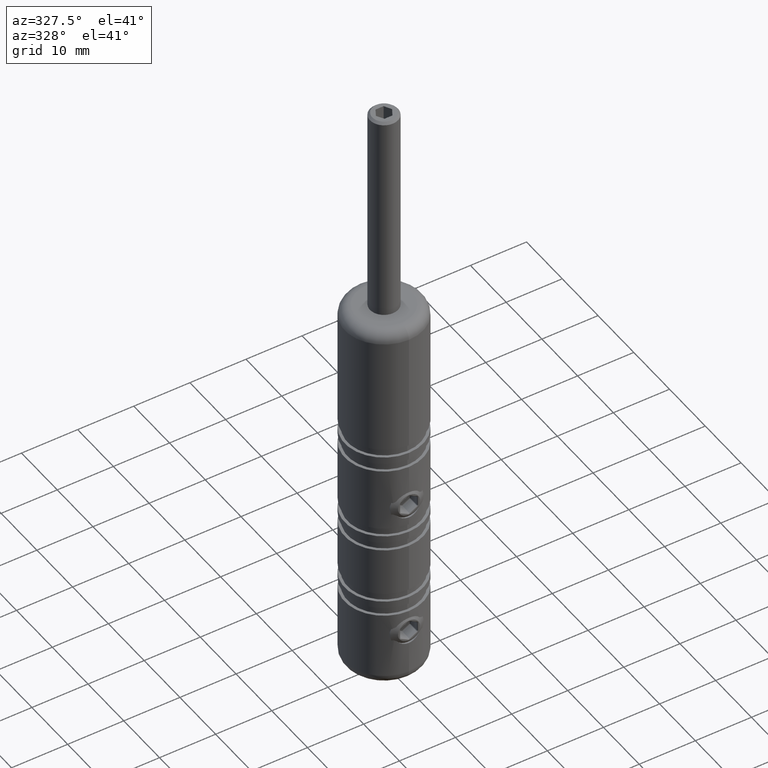
[diagram: clean part render]
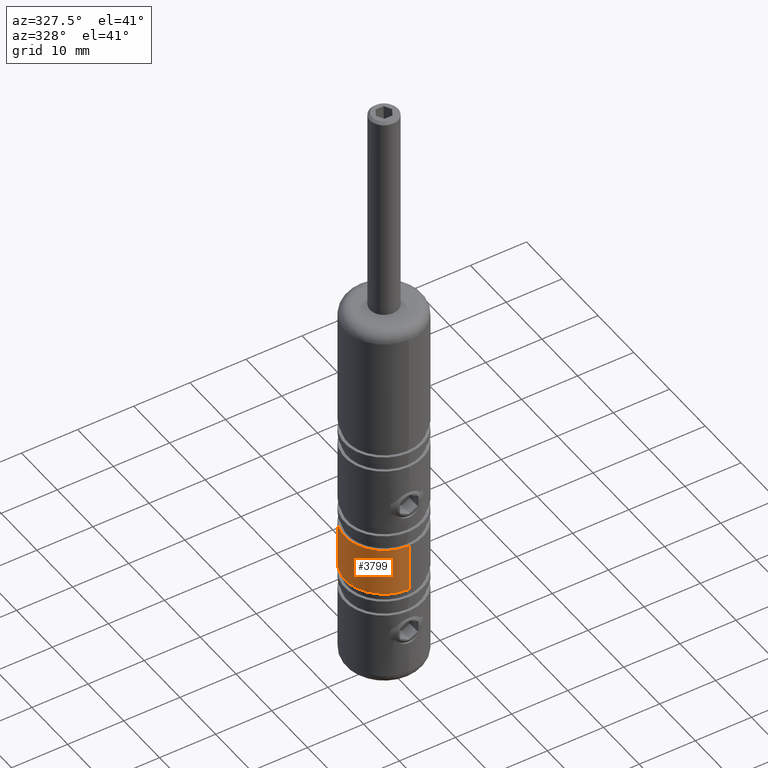
[diagram: same view with one face highlighted and labeled with its STEP entity id]
A machine part, auxiliary view. The second image highlights one B-rep face of the part: STEP entity #3799.
In plain terms, the highlighted cylindrical surface (partial cylindrical patch) has radius 7 mm, axis along (0, 0, 1).
Its self-contained STEP definition (entity closure, byte-faithful):
#489 = AXIS2_PLACEMENT_3D ( 'NONE', #8557, #12616, #6138 ) ;
#608 = CARTESIAN_POINT ( 'NONE',  ( 8.572527594031454500E-016, 6.999999999999982200, -16.70000000000000600 ) ) ;
#867 = CARTESIAN_POINT ( 'NONE',  ( -2.244461535863837100, 6.630754201568820800, -13.46336488651462200 ) ) ;
#972 = CARTESIAN_POINT ( 'NONE',  ( -2.167036636351883100, 6.656792451069414100, -13.60707604040152700 ) ) ;
#1109 = CARTESIAN_POINT ( 'NONE',  ( 0.0000000000000000000, -3.095322350909004000E-015, -16.70000000000000600 ) ) ;
#1395 = CARTESIAN_POINT ( 'NONE',  ( 0.0000000000000000000, -6.999999999999988500, -16.70000000000000600 ) ) ;
#1485 = ORIENTED_EDGE ( 'NONE', *, *, #4259, .F. ) ;
#1721 = CARTESIAN_POINT ( 'NONE',  ( 8.572527594031454500E-016, 6.999999999999982200, -8.000000000000007100 ) ) ;
#2055 = CARTESIAN_POINT ( 'NONE',  ( -2.182616585610912500, 6.652348402511701200, -11.08827061270666000 ) ) ;
#2171 = CARTESIAN_POINT ( 'NONE',  ( -1.527369289322312500, 6.832725277042822400, -14.33584607393498800 ) ) ;
#2224 = CARTESIAN_POINT ( 'NONE',  ( -1.997143572992787100, 6.713209561779717800, -10.81184098112805500 ) ) ;
#2493 = VECTOR ( 'NONE', #14704, 1000.000000000000000 ) ;
#3015 = DIRECTION ( 'NONE',  ( -0.0000000000000000000, 5.987083850887820200E-017, 1.000000000000000000 ) ) ;
#3104 = VECTOR ( 'NONE', #15484, 1000.000000000000000 ) ;
#3134 = LINE ( 'NONE', #4583, #10028 ) ;
#3303 = CARTESIAN_POINT ( 'NONE',  ( 8.570729401906099000E-016, 6.999999999999983100, -14.85000000000000700 ) ) ;
#3377 = CARTESIAN_POINT ( 'NONE',  ( -1.257255898599277900, 6.887546679547238400, -14.51696773874584800 ) ) ;
#3426 = CARTESIAN_POINT ( 'NONE',  ( -0.3302835225427124800, 6.994060066667625400, -9.866497415497489600 ) ) ;
#3486 = CARTESIAN_POINT ( 'NONE',  ( 8.570729401906099000E-016, 6.999999999999983100, -14.85000000000000700 ) ) ;
#3633 = EDGE_CURVE ( 'NONE', #6071, #15276, #11861, .T. ) ;
#3772 = AXIS2_PLACEMENT_3D ( 'NONE', #1109, #6525, #16828 ) ;
#3799 = ADVANCED_FACE ( 'NONE', ( #15934 ), #16361, .T. ) ;
#4184 = ORIENTED_EDGE ( 'NONE', *, *, #15216, .F. ) ;
#4259 = EDGE_CURVE ( 'NONE', #15190, #7906, #8353, .T. ) ;
#4426 = ORIENTED_EDGE ( 'NONE', *, *, #13851, .F. ) ;
#4583 = CARTESIAN_POINT ( 'NONE',  ( 8.572527594031454500E-016, 6.999999999999985800, 35.00000000000000000 ) ) ;
#4686 = CARTESIAN_POINT ( 'NONE',  ( -0.1641597229444198300, 6.999999999999983100, -14.85000000000000500 ) ) ;
#4741 = CARTESIAN_POINT ( 'NONE',  ( -2.483724230319996000, 6.544639652285172600, -12.02090666840677200 ) ) ;
#4796 = CARTESIAN_POINT ( 'NONE',  ( 0.0000000000000000000, 6.999999999999984000, -9.850000000000010300 ) ) ;
#4855 = CARTESIAN_POINT ( 'NONE',  ( -0.6517530939081319600, 6.971454749619989700, -9.930890619034549600 ) ) ;
#4872 = ORIENTED_EDGE ( 'NONE', *, *, #12644, .T. ) ;
#4912 = CARTESIAN_POINT ( 'NONE',  ( -1.113545017333396100, 6.912546105698071500, -10.10571238519315300 ) ) ;
#5744 = CARTESIAN_POINT ( 'NONE',  ( 0.0000000000000000000, 6.999999999999984000, -9.850000000000010300 ) ) ;
#6071 = VERTEX_POINT ( 'NONE', #1395 ) ;
#6086 = CARTESIAN_POINT ( 'NONE',  ( -2.499912498922765900, 6.538381872178709900, -12.18405522716552600 ) ) ;
#6097 = ORIENTED_EDGE ( 'NONE', *, *, #3633, .T. ) ;
#6138 = DIRECTION ( 'NONE',  ( 0.0000000000000000000, -1.000000000000000000, 0.0000000000000000000 ) ) ;
#6496 = CARTESIAN_POINT ( 'NONE',  ( 8.572527594031454500E-016, 6.999999999999985800, 35.00000000000000000 ) ) ;
#6525 = DIRECTION ( 'NONE',  ( -0.0000000000000000000, 5.987083850887820200E-017, 1.000000000000000000 ) ) ;
#7320 = CARTESIAN_POINT ( 'NONE',  ( -2.371248968516983500, 6.586477601639737500, -13.15892971623195100 ) ) ;
#7388 = CARTESIAN_POINT ( 'NONE',  ( -1.111092826571011400, 6.912925548549028900, -14.59544560298867000 ) ) ;
#7674 = EDGE_CURVE ( 'NONE', #15190, #6071, #16305, .T. ) ;
#7884 = AXIS2_PLACEMENT_3D ( 'NONE', #10912, #3015, #13639 ) ;
#7906 = VERTEX_POINT ( 'NONE', #3303 ) ;
#7932 = EDGE_LOOP ( 'NONE', ( #1485, #14178, #6097, #4426, #4184, #4872 ) ) ;
#8353 = LINE ( 'NONE', #6496, #3104 ) ;
#8519 = CARTESIAN_POINT ( 'NONE',  ( -1.652205860208954200, 6.803257230850212200, -14.23323798043909100 ) ) ;
#8557 = CARTESIAN_POINT ( 'NONE',  ( 0.0000000000000000000, -3.851859888774471700E-031, 35.00000000000000000 ) ) ;
#8629 = CARTESIAN_POINT ( 'NONE',  ( -0.1666654329739607800, 6.999999999999982200, -9.850000000000012100 ) ) ;
#8679 = CARTESIAN_POINT ( 'NONE',  ( -0.6540777655606419000, 6.971270671019898800, -14.76858295613455000 ) ) ;
#9959 = CARTESIAN_POINT ( 'NONE',  ( -1.881945351263201800, 6.743320758237990400, -14.00367807941447400 ) ) ;
#10015 = CARTESIAN_POINT ( 'NONE',  ( -1.654417258820098700, 6.802708637123689800, -10.46876837195973300 ) ) ;
#10028 = VECTOR ( 'NONE', #15065, 1000.000000000000000 ) ;
#10083 = B_SPLINE_CURVE_WITH_KNOTS ( 'NONE', 3,
 ( #4796, #8629, #3426, #4855, #12685, #4912, #13896, #11284, #10015, #2224, #2055, #15164, #11394, #4741, #6086, #14012, #11171, #15219, #7320, #867, #972, #11229, #9959, #8519, #2171, #3377, #7388, #16539, #8679, #12467, #4686, #3486 ),
 .UNSPECIFIED., .F., .F.,
 ( 4, 2, 2, 2, 2, 2, 2, 2, 2, 2, 2, 2, 2, 2, 2, 4 ),
 ( 0.0000000000000000000, 0.0004926113832447606900, 0.0009852227664895213800, 0.001477834149734281500, 0.001970445532979041900, 0.002955668299468562200, 0.003448279682713320600, 0.003940891065958078600, 0.004433502449202837000, 0.004926113832447595400, 0.005418725215692353000, 0.005911336598937110500, 0.006403947982181868900, 0.006896559365426626500, 0.007389170748671385800, 0.007881782131916145000 ),
 .UNSPECIFIED. ) ;
#10876 = CIRCLE ( 'NONE', #7884, 6.999999999999984900 ) ;
#10912 = CARTESIAN_POINT ( 'NONE',  ( 0.0000000000000000000, -2.574446055881763600E-015, -8.000000000000007100 ) ) ;
#11005 = CARTESIAN_POINT ( 'NONE',  ( 0.0000000000000000000, -6.999999999999987600, -8.000000000000007100 ) ) ;
#11171 = CARTESIAN_POINT ( 'NONE',  ( -2.483487897825189500, 6.544728749842665400, -12.68049854212959500 ) ) ;
#11229 = CARTESIAN_POINT ( 'NONE',  ( -1.986513075921679600, 6.712875637094601400, -13.87645135979993500 ) ) ;
#11284 = CARTESIAN_POINT ( 'NONE',  ( -1.527415625474456900, 6.832721556297995500, -10.36415885614813200 ) ) ;
#11394 = CARTESIAN_POINT ( 'NONE',  ( -2.418985510736148200, 6.568843378357455800, -11.69754496551382400 ) ) ;
#11861 = LINE ( 'NONE', #12314, #2493 ) ;
#12220 = VERTEX_POINT ( 'NONE', #5744 ) ;
#12314 = CARTESIAN_POINT ( 'NONE',  ( 0.0000000000000000000, -6.999999999999985800, 35.00000000000000000 ) ) ;
#12467 = CARTESIAN_POINT ( 'NONE',  ( -0.3297201420311619600, 6.994120181978717100, -14.83367587801715700 ) ) ;
#12616 = DIRECTION ( 'NONE',  ( -0.0000000000000000000, 5.987083850887820200E-017, 1.000000000000000000 ) ) ;
#12644 = EDGE_CURVE ( 'NONE', #12220, #7906, #10083, .T. ) ;
#12685 = CARTESIAN_POINT ( 'NONE',  ( -0.8113121982069010400, 6.954498449641811000, -9.979645190980026100 ) ) ;
#13639 = DIRECTION ( 'NONE',  ( 0.0000000000000000000, -1.000000000000000000, 0.0000000000000000000 ) ) ;
#13851 = EDGE_CURVE ( 'NONE', #14793, #15276, #10876, .T. ) ;
#13896 = CARTESIAN_POINT ( 'NONE',  ( -1.256655774511397800, 6.887662783791753900, -10.18265604807506900 ) ) ;
#14012 = CARTESIAN_POINT ( 'NONE',  ( -2.500086800412540700, 6.538315226349094000, -12.51329776576652500 ) ) ;
#14178 = ORIENTED_EDGE ( 'NONE', *, *, #7674, .T. ) ;
#14704 = DIRECTION ( 'NONE',  ( -0.0000000000000000000, 5.987083850887820200E-017, 1.000000000000000000 ) ) ;
#14793 = VERTEX_POINT ( 'NONE', #1721 ) ;
#15065 = DIRECTION ( 'NONE',  ( -0.0000000000000000000, 5.987083850887820200E-017, 1.000000000000000000 ) ) ;
#15164 = CARTESIAN_POINT ( 'NONE',  ( -2.370245848837739400, 6.586829527406432100, -11.53859463416655000 ) ) ;
#15190 = VERTEX_POINT ( 'NONE', #608 ) ;
#15216 = EDGE_CURVE ( 'NONE', #12220, #14793, #3134, .T. ) ;
#15219 = CARTESIAN_POINT ( 'NONE',  ( -2.418957270324506600, 6.568853193062357900, -13.00237040807978900 ) ) ;
#15276 = VERTEX_POINT ( 'NONE', #11005 ) ;
#15484 = DIRECTION ( 'NONE',  ( -0.0000000000000000000, 5.987083850887820200E-017, 1.000000000000000000 ) ) ;
#15934 = FACE_OUTER_BOUND ( 'NONE', #7932, .T. ) ;
#16305 = CIRCLE ( 'NONE', #3772, 6.999999999999985800 ) ;
#16361 = CYLINDRICAL_SURFACE ( 'NONE', #489, 6.999999999999985800 ) ;
#16539 = CARTESIAN_POINT ( 'NONE',  ( -0.8102109664719883100, 6.954611786350692000, -14.72067741691003000 ) ) ;
#16828 = DIRECTION ( 'NONE',  ( 0.0000000000000000000, -1.000000000000000000, 0.0000000000000000000 ) ) ;